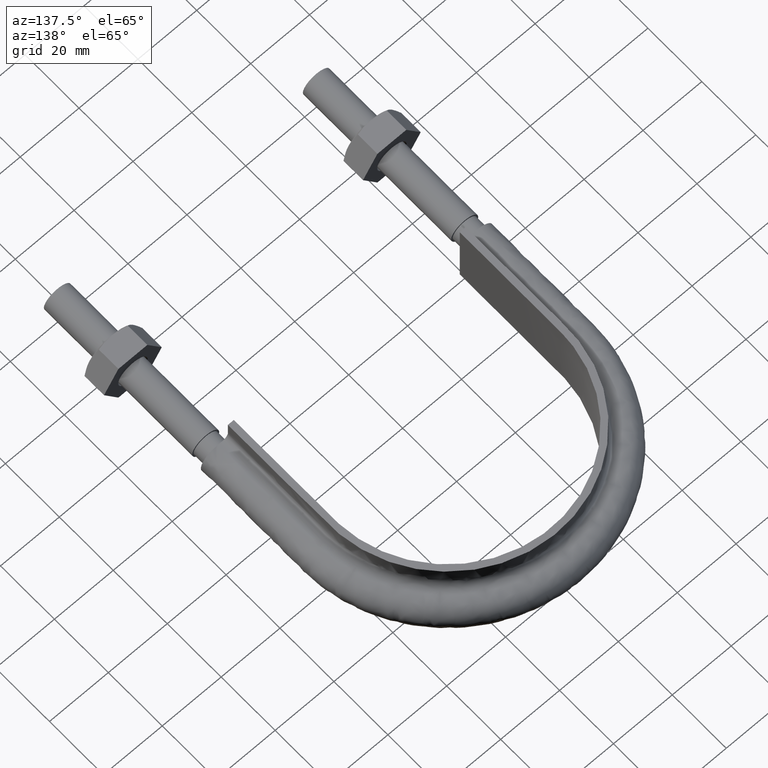
[diagram: clean part render]
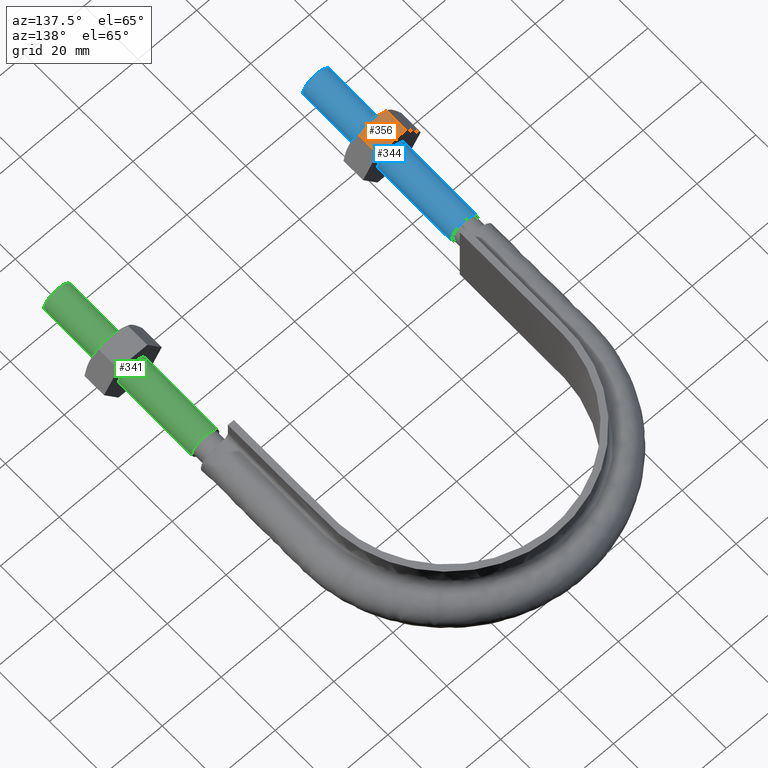
[diagram: same view with three faces highlighted in distinct colors, each labeled with its STEP entity id]
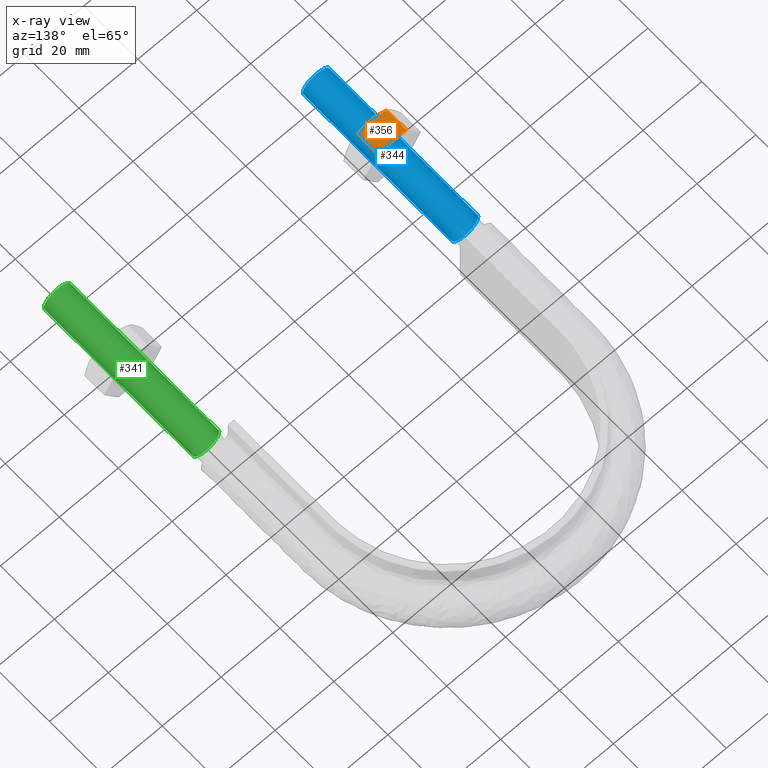
[diagram: x-ray of the same camera — body ghosted, the three highlighted faces saturated]
A machine part, auxiliary view with three faces highlighted in distinct colors.
The next image is the same camera in x-ray (body ghosted, the three faces saturated) — at least one of them is partly hidden behind the body in this view.
Their STEP definitions:

[orange] entity #356 — the highlighted planar face has unit normal (0, 0, -1).
#356 = ADVANCED_FACE( '', ( #486 ), #487, .F. );
#486 = FACE_OUTER_BOUND( '', #1485, .T. );
#487 = PLANE( '', #1486 );
#1485 = EDGE_LOOP( '', ( #1843, #1844, #1845, #1846, #1847 ) );
#1486 = AXIS2_PLACEMENT_3D( '', #1848, #1849, #1850 );
#1843 = ORIENTED_EDGE( '', *, *, #2197, .F. );
#1844 = ORIENTED_EDGE( '', *, *, #2192, .F. );
#1845 = ORIENTED_EDGE( '', *, *, #2198, .F. );
#1846 = ORIENTED_EDGE( '', *, *, #2184, .F. );
#1847 = ORIENTED_EDGE( '', *, *, #2199, .F. );
#1848 = CARTESIAN_POINT( '', ( -48.9074772881118, 28.0000000000000, 8.50000000000000 ) );
#1849 = DIRECTION( '', ( 1.11022302462516E-016, 6.12303176911189E-017, -1.00000000000000 ) );
#1850 = DIRECTION( '', ( -1.00000000000000, 2.44921270764475E-016, -1.11022302462516E-016 ) );
#2184 = EDGE_CURVE( '', #2386, #2388, #2389, .T. );
#2192 = EDGE_CURVE( '', #2400, #2349, #2402, .T. );
#2197 = EDGE_CURVE( '', #2349, #2407, #2408, .T. );
#2198 = EDGE_CURVE( '', #2388, #2400, #2409, .F. );
#2199 = EDGE_CURVE( '', #2407, #2386, #2410, .T. );
#2349 = VERTEX_POINT( '', #2870 );
#2386 = VERTEX_POINT( '', #2925 );
#2388 = VERTEX_POINT( '', #2927 );
#2389 = LINE( '', #2928, #2929 );
#2400 = VERTEX_POINT( '', #2950 );
#2402 = B_SPLINE_CURVE_WITH_KNOTS( '', 3, ( #2952, #2953, #2954, #2955, #2956, #2957 ), .UNSPECIFIED., .F., .F., ( 4, 2, 4 ), ( 4.83064900412351E-007, 0.00246777364959070, 0.00493506423428099 ), .UNSPECIFIED. );
#2407 = VERTEX_POINT( '', #2974 );
#2408 = B_SPLINE_CURVE_WITH_KNOTS( '', 3, ( #2975, #2976, #2977, #2978, #2979, #2980, #2981, #2982 ), .UNSPECIFIED., .F., .F., ( 4, 2, 2, 4 ), ( 0.00493506423428099, 0.00616384870526321, 0.00739263317624543, 0.00985020211820988 ), .UNSPECIFIED. );
#2409 = LINE( '', #2983, #2984 );
#2410 = LINE( '', #2985, #2986 );
#2870 = CARTESIAN_POINT( '', ( -44.0000000000000, 20.0000000000000, 8.50000000000000 ) );
#2925 = CARTESIAN_POINT( '', ( -48.8774993593029, 28.0000000000000, 8.50000000000000 ) );
#2927 = CARTESIAN_POINT( '', ( -39.1225006406971, 28.0000000000000, 8.50000000000000 ) );
#2928 = CARTESIAN_POINT( '', ( -39.1000000000000, 28.0000000000000, 8.50000000000000 ) );
#2929 = VECTOR( '', #3311, 1000.00000000000 );
#2950 = CARTESIAN_POINT( '', ( -39.1225006406971, 20.7505553499465, 8.50000000000000 ) );
#2952 = CARTESIAN_POINT( '', ( -39.1225006406971, 20.7505553499465, 8.50000000000000 ) );
#2953 = CARTESIAN_POINT( '', ( -39.9206053692588, 20.5212203171277, 8.50000000000000 ) );
#2954 = CARTESIAN_POINT( '', ( -40.7244743057427, 20.3324525365440, 8.50000000000000 ) );
#2955 = CARTESIAN_POINT( '', ( -42.3487653825440, 20.0714148540586, 8.50000000000000 ) );
#2956 = CARTESIAN_POINT( '', ( -43.1693090167581, 20.0000000000000, 8.50000000000000 ) );
#2957 = CARTESIAN_POINT( '', ( -44.0000000000000, 20.0000000000000, 8.50000000000000 ) );
#2974 = CARTESIAN_POINT( '', ( -48.8774993593029, 20.7505553499465, 8.50000000000000 ) );
#2975 = CARTESIAN_POINT( '', ( -44.0000000000000, 20.0000000000000, 8.50000000000000 ) );
#2976 = CARTESIAN_POINT( '', ( -44.4137089432134, 20.0000000000000, 8.50000000000000 ) );
#2977 = CARTESIAN_POINT( '', ( -44.8294869254275, 20.0177112081763, 8.50000000000000 ) );
#2978 = CARTESIAN_POINT( '', ( -45.6519999770223, 20.0863021936212, 8.50000000000000 ) );
#2979 = CARTESIAN_POINT( '', ( -46.0605223337830, 20.1371116504194, 8.50000000000000 ) );
#2980 = CARTESIAN_POINT( '', ( -47.2788691256671, 20.3331494013913, 8.50000000000000 ) );
#2981 = CARTESIAN_POINT( '', ( -48.0815000650892, 20.5218253127355, 8.50000000000000 ) );
#2982 = CARTESIAN_POINT( '', ( -48.8774993593029, 20.7505553499465, 8.50000000000000 ) );
#2983 = CARTESIAN_POINT( '', ( -39.1225006406971, 28.0000000000000, 8.50000000000000 ) );
#2984 = VECTOR( '', #3326, 1000.00000000000 );
#2985 = CARTESIAN_POINT( '', ( -48.8774993593029, 28.0000000000000, 8.50000000000000 ) );
#2986 = VECTOR( '', #3327, 1000.00000000000 );
#3311 = DIRECTION( '', ( 1.00000000000000, -2.44921270764475E-016, 1.11022302462516E-016 ) );
#3326 = DIRECTION( '', ( 2.44921270764475E-016, 1.00000000000000, 6.12303176911189E-017 ) );
#3327 = DIRECTION( '', ( 2.44921270764475E-016, 1.00000000000000, 6.12303176911189E-017 ) );

[blue] entity #344 — the highlighted cylindrical surface (bore or boss wall) has radius 4.6 mm, axis along (0, 1, 0).
#344 = ADVANCED_FACE( '', ( #459, #460 ), #461, .T. );
#459 = FACE_OUTER_BOUND( '', #1458, .T. );
#460 = FACE_OUTER_BOUND( '', #1459, .T. );
#461 = CYLINDRICAL_SURFACE( '', #1460, 4.60000000000000 );
#1458 = EDGE_LOOP( '', ( #1752 ) );
#1459 = EDGE_LOOP( '', ( #1753 ) );
#1460 = AXIS2_PLACEMENT_3D( '', #1754, #1755, #1756 );
#1752 = ORIENTED_EDGE( '', *, *, #2157, .T. );
#1753 = ORIENTED_EDGE( '', *, *, #2158, .F. );
#1754 = CARTESIAN_POINT( '', ( -44.0000000000000, 55.0000000000000, 3.42889779070266E-015 ) );
#1755 = DIRECTION( '', ( 2.44921270764475E-016, 1.00000000000000, 6.12303176911189E-017 ) );
#1756 = DIRECTION( '', ( 1.00000000000000, -2.44921270764475E-016, -7.49830360911069E-033 ) );
#2157 = EDGE_CURVE( '', #2337, #2337, #2338, .T. );
#2158 = EDGE_CURVE( '', #2339, #2339, #2340, .T. );
#2337 = VERTEX_POINT( '', #2846 );
#2338 = CIRCLE( '', #2847, 4.60000000000000 );
#2339 = VERTEX_POINT( '', #2848 );
#2340 = CIRCLE( '', #2849, 4.60000000000000 );
#2846 = CARTESIAN_POINT( '', ( -39.4000000000000, 55.0000000000000, 3.42889779070266E-015 ) );
#2847 = AXIS2_PLACEMENT_3D( '', #3254, #3255, #3256 );
#2848 = CARTESIAN_POINT( '', ( -39.4000000000000, 9.64989806812033E-015, 6.12303176911191E-017 ) );
#2849 = AXIS2_PLACEMENT_3D( '', #3257, #3258, #3259 );
#3254 = CARTESIAN_POINT( '', ( -44.0000000000000, 55.0000000000000, 3.42889779070266E-015 ) );
#3255 = DIRECTION( '', ( -2.44921270764476E-016, -1.00000000000000, -6.12303176911189E-017 ) );
#3256 = DIRECTION( '', ( 1.00000000000000, -2.44921270764476E-016, -1.01150562509412E-032 ) );
#3257 = CARTESIAN_POINT( '', ( -44.0000000000000, 1.07765359136369E-014, 6.12303176911192E-017 ) );
#3258 = DIRECTION( '', ( -2.44921270764476E-016, -1.00000000000000, -6.12303176911189E-017 ) );
#3259 = DIRECTION( '', ( 1.00000000000000, -2.44921270764476E-016, -1.01150562509412E-032 ) );

[green] entity #341 — the highlighted cylindrical surface (bore or boss wall) has radius 4.6 mm, axis along (0, 1, 0).
#341 = ADVANCED_FACE( '', ( #452, #453 ), #454, .T. );
#452 = FACE_OUTER_BOUND( '', #1451, .T. );
#453 = FACE_OUTER_BOUND( '', #1452, .T. );
#454 = CYLINDRICAL_SURFACE( '', #1453, 4.60000000000000 );
#1451 = EDGE_LOOP( '', ( #1739 ) );
#1452 = EDGE_LOOP( '', ( #1740 ) );
#1453 = AXIS2_PLACEMENT_3D( '', #1741, #1742, #1743 );
#1739 = ORIENTED_EDGE( '', *, *, #2155, .T. );
#1740 = ORIENTED_EDGE( '', *, *, #2156, .F. );
#1741 = CARTESIAN_POINT( '', ( 44.0000000000000, 55.0000000000000, 3.39828263185710E-015 ) );
#1742 = DIRECTION( '', ( 2.44921270764475E-016, 1.00000000000000, 6.12303176911189E-017 ) );
#1743 = DIRECTION( '', ( 1.00000000000000, -2.44921270764475E-016, -7.49830360911069E-033 ) );
#2155 = EDGE_CURVE( '', #2333, #2333, #2334, .T. );
#2156 = EDGE_CURVE( '', #2335, #2335, #2336, .T. );
#2333 = VERTEX_POINT( '', #2842 );
#2334 = CIRCLE( '', #2843, 4.60000000000000 );
#2335 = VERTEX_POINT( '', #2844 );
#2336 = CIRCLE( '', #2845, 4.60000000000000 );
#2842 = CARTESIAN_POINT( '', ( 48.6000000000000, 55.0000000000000, 3.39828263185710E-015 ) );
#2843 = AXIS2_PLACEMENT_3D( '', #3248, #3249, #3250 );
#2844 = CARTESIAN_POINT( '', ( 48.6000000000000, -1.19031737591535E-014, 3.06151588455591E-017 ) );
#2845 = AXIS2_PLACEMENT_3D( '', #3251, #3252, #3253 );
#3248 = CARTESIAN_POINT( '', ( 44.0000000000000, 55.0000000000000, 3.39828263185710E-015 ) );
#3249 = DIRECTION( '', ( -2.44921270764475E-016, -1.00000000000000, -6.12303176911189E-017 ) );
#3250 = DIRECTION( '', ( 1.00000000000000, -2.44921270764475E-016, -7.49830360911069E-033 ) );
#3251 = CARTESIAN_POINT( '', ( 44.0000000000000, -1.07765359136369E-014, 3.06151588455591E-017 ) );
#3252 = DIRECTION( '', ( -2.44921270764475E-016, -1.00000000000000, -6.12303176911189E-017 ) );
#3253 = DIRECTION( '', ( 1.00000000000000, -2.44921270764475E-016, -7.49830360911069E-033 ) );